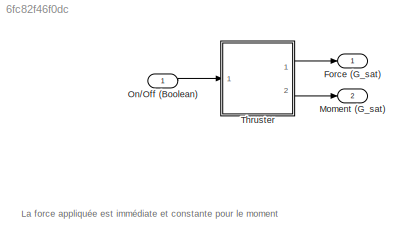
MODEL slx_6fc82f46f0dc
KIND model
CONFIG AbsTol = auto
CONFIG EnableMultiTasking = off
CONFIG FixedStep = auto
CONFIG MaxStep = auto
CONFIG MinStep = auto
CONFIG RelTol = 1e-3
CONFIG SampleTimeConstraint = Unconstrained
CONFIG Solver = VariableStepAuto
CONFIG SolverName = VariableStepAuto
CONFIG StartTime = 0.0
CONFIG StopTime = 10.0
BLOCK [Outport] Force (G_sat)
  IconDisplay = Port number
BLOCK [Outport] Moment (G_sat)
  IconDisplay = Port number
  Port = 2
BLOCK [Inport] On//Off (Boolean)
  IconDisplay = Port number
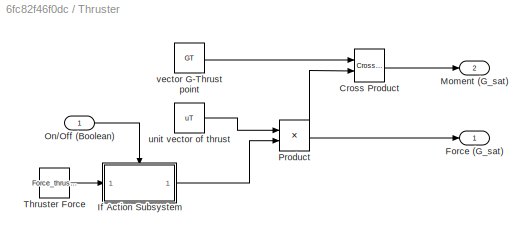
BLOCK [SubSystem] Thruster
  Ports = [1, 2]
  RequestExecContextInheritance = off
BLOCK [Reference] Thruster/Cross Product  REF=vrlib/Utilities/Cross Product
  Ports = [2, 1]
  SourceBlock = vrlib/Utilities/Cross Product
  SourceProductBaseCode = SL
  SourceProductName = Simulink
  SourceType = Cross Product
BLOCK [Outport] Thruster/Force (G_sat)
  IconDisplay = Port number
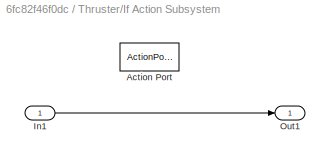
BLOCK [SubSystem] Thruster/If Action Subsystem
  Ports = [1, 1, 0, 0, 0, 0, 0, 1]
  RequestExecContextInheritance = off
  TreatAsAtomicUnit = on
BLOCK [ActionPort] Thruster/If Action Subsystem/Action Port
BLOCK [Inport] Thruster/If Action Subsystem/In1
  IconDisplay = Port number
BLOCK [Outport] Thruster/If Action Subsystem/Out1
  IconDisplay = Port number
  VectorParamsAs1DForOutWhenUnconnected = on
BLOCK [Outport] Thruster/Moment (G_sat)
  IconDisplay = Port number
  Port = 2
BLOCK [Inport] Thruster/On//Off (Boolean)
  IconDisplay = Port number
BLOCK [Product] Thruster/Product
  InputSameDT = off
  OutDataTypeStr = Inherit: Inherit via internal rule
  Ports = [2, 1]
  RndMeth = Floor
  SaturateOnIntegerOverflow = off
BLOCK [Constant] Thruster/Thruster Force
  Value = Force_thruster
BLOCK [Constant] Thruster/unit vector of thrust
  Value = uT
BLOCK [Constant] Thruster/vector G-Thrust point
  Value = GT
ANNOTATION (root): La force appliquée est immédiate et constante pour le moment
LINE On//Off (Boolean):1 -> Thruster:1
LINE Thruster/Cross Product:1 -> Thruster/Moment (G_sat):1
LINE Thruster/If Action Subsystem/In1:1 -> Thruster/If Action Subsystem/Out1:1
LINE Thruster/If Action Subsystem:1 -> Thruster/Product:2
LINE Thruster/On//Off (Boolean):1 -> Thruster/If Action Subsystem:ifaction
NET Thruster/Product:1 -> Thruster/Cross Product:2, Thruster/Force (G_sat):1
LINE Thruster/Thruster Force:1 -> Thruster/If Action Subsystem:1
LINE Thruster/unit vector of thrust:1 -> Thruster/Product:1
LINE Thruster/vector G-Thrust point:1 -> Thruster/Cross Product:1
LINE Thruster:1 -> Force (G_sat):1
LINE Thruster:2 -> Moment (G_sat):1
note: NET lines group one-source signal fan-out (src -> all destinations, sorted); 1:1 wires keep LINE
